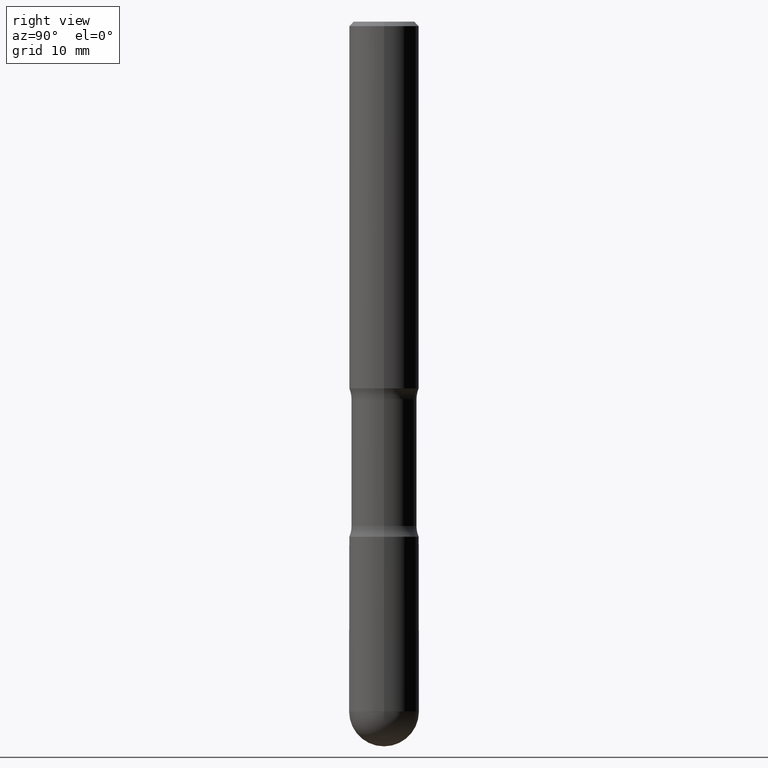
[diagram: clean part render]
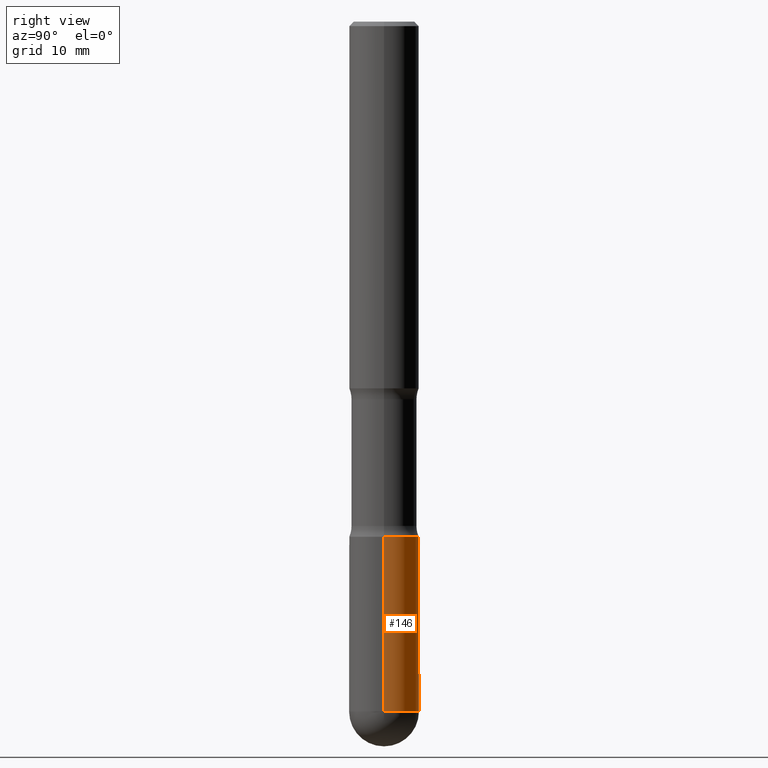
[diagram: same view with one face highlighted and labeled with its STEP entity id]
A machine part, right view. The second image highlights one B-rep face of the part: STEP entity #146.
In plain terms, the highlighted cylindrical surface (edge-blend (fillet) strip) has radius 4.0005 mm, axis along (-0, 0, 1).
Its self-contained STEP definition (entity closure, byte-faithful):
#16 = EDGE_CURVE ( 'NONE', #363, #115, #334, .T. ) ;
#21 = EDGE_CURVE ( 'NONE', #68, #295, #87, .T. ) ;
#36 = DIRECTION ( 'NONE',  ( 1.000000000000000000, -6.982962677686261977E-15, 0.000000000000000000 ) ) ;
#42 = CARTESIAN_POINT ( 'NONE',  ( 0.000000000000000000, 0.000000000000000000, 0.000000000000000000 ) ) ;
#50 = EDGE_CURVE ( 'NONE', #68, #363, #327, .T. ) ;
#66 = EDGE_CURVE ( 'NONE', #295, #451, #480, .T. ) ;
#67 = CARTESIAN_POINT ( 'NONE',  ( -0.1574999999999994182, -8.365504248145252306E-15, -3.110199999999999854 ) ) ;
#68 = VERTEX_POINT ( 'NONE', #254 ) ;
#87 = CIRCLE ( 'NONE', #491, 0.1574999999999994182 ) ;
#115 = VERTEX_POINT ( 'NONE', #208 ) ;
#146 = ADVANCED_FACE ( 'NONE', ( #526 ), #523, .T. ) ;
#156 = LINE ( 'NONE', #499, #427 ) ;
#162 = VECTOR ( 'NONE', #473, 39.37007874015748143 ) ;
#185 = ORIENTED_EDGE ( 'NONE', *, *, #50, .F. ) ;
#190 = ORIENTED_EDGE ( 'NONE', *, *, #407, .T. ) ;
#196 = DIRECTION ( 'NONE',  ( -2.445468806185136877E-29, 3.491481338843145188E-15, 1.000000000000000000 ) ) ;
#204 = AXIS2_PLACEMENT_3D ( 'NONE', #508, #456, #36 ) ;
#206 = CARTESIAN_POINT ( 'NONE',  ( 7.605897080997012116E-29, -1.085920526006995152E-14, -3.110199999999999854 ) ) ;
#208 = CARTESIAN_POINT ( 'NONE',  ( -0.1574999999999995848, -8.365504248145252306E-15, -2.322799999999999976 ) ) ;
#215 = DIRECTION ( 'NONE',  ( 1.000000000000000000, -6.982962677686266711E-15, 4.876176775795935793E-29 ) ) ;
#232 = AXIS2_PLACEMENT_3D ( 'NONE', #42, #303, #215 ) ;
#245 = DIRECTION ( 'NONE',  ( -2.445468806185136597E-29, 3.491481338843145583E-15, 1.000000000000000000 ) ) ;
#254 = CARTESIAN_POINT ( 'NONE',  ( 0.1574999999999994182, -1.058442567870298871E-14, -3.110199999999999854 ) ) ;
#259 = DIRECTION ( 'NONE',  ( -2.445468806185136597E-29, 3.491481338843145583E-15, 1.000000000000000000 ) ) ;
#287 = CARTESIAN_POINT ( 'NONE',  ( 0.1574999999999994738, -1.099816621735583339E-15, 7.679978421878572810E-30 ) ) ;
#295 = VERTEX_POINT ( 'NONE', #442 ) ;
#303 = DIRECTION ( 'NONE',  ( -2.445468806185136597E-29, 3.491481338843145583E-15, 1.000000000000000000 ) ) ;
#327 = LINE ( 'NONE', #287, #162 ) ;
#334 = CIRCLE ( 'NONE', #204, 0.1574999999999995848 ) ;
#363 = VERTEX_POINT ( 'NONE', #543 ) ;
#380 = AXIS2_PLACEMENT_3D ( 'NONE', #206, #259, #433 ) ;
#402 = ORIENTED_EDGE ( 'NONE', *, *, #66, .T. ) ;
#406 = ORIENTED_EDGE ( 'NONE', *, *, #16, .F. ) ;
#407 = EDGE_CURVE ( 'NONE', #451, #115, #156, .T. ) ;
#416 = CARTESIAN_POINT ( 'NONE',  ( 7.605897080997012116E-29, -1.085920526006995152E-14, -3.110199999999999854 ) ) ;
#427 = VECTOR ( 'NONE', #196, 39.37007874015748143 ) ;
#433 = DIRECTION ( 'NONE',  ( 1.000000000000000000, -6.982962677686262766E-15, 0.000000000000000000 ) ) ;
#442 = CARTESIAN_POINT ( 'NONE',  ( 1.099816621735659069E-15, 0.1574999999999886213, -3.110200000000000742 ) ) ;
#451 = VERTEX_POINT ( 'NONE', #67 ) ;
#456 = DIRECTION ( 'NONE',  ( -2.445468806185136597E-29, 3.491481338843145583E-15, 1.000000000000000000 ) ) ;
#461 = EDGE_LOOP ( 'NONE', ( #402, #190, #406, #185, #531 ) ) ;
#473 = DIRECTION ( 'NONE',  ( -2.445468806185136877E-29, 3.491481338843145188E-15, 1.000000000000000000 ) ) ;
#480 = CIRCLE ( 'NONE', #380, 0.1574999999999994182 ) ;
#491 = AXIS2_PLACEMENT_3D ( 'NONE', #416, #245, #554 ) ;
#499 = CARTESIAN_POINT ( 'NONE',  ( -0.1574999999999994738, 1.119104808822154054E-15, -7.747322767151451761E-30 ) ) ;
#508 = CARTESIAN_POINT ( 'NONE',  ( 5.680334943006836279E-29, -8.110012853864858834E-15, -2.322799999999999976 ) ) ;
#523 = CYLINDRICAL_SURFACE ( 'NONE', #232, 0.1574999999999994738 ) ;
#526 = FACE_OUTER_BOUND ( 'NONE', #461, .T. ) ;
#531 = ORIENTED_EDGE ( 'NONE', *, *, #21, .T. ) ;
#543 = CARTESIAN_POINT ( 'NONE',  ( 0.1574999999999995848, -9.209829475600442370E-15, -2.322799999999999976 ) ) ;
#554 = DIRECTION ( 'NONE',  ( 1.000000000000000000, -6.982962677686262766E-15, 0.000000000000000000 ) ) ;